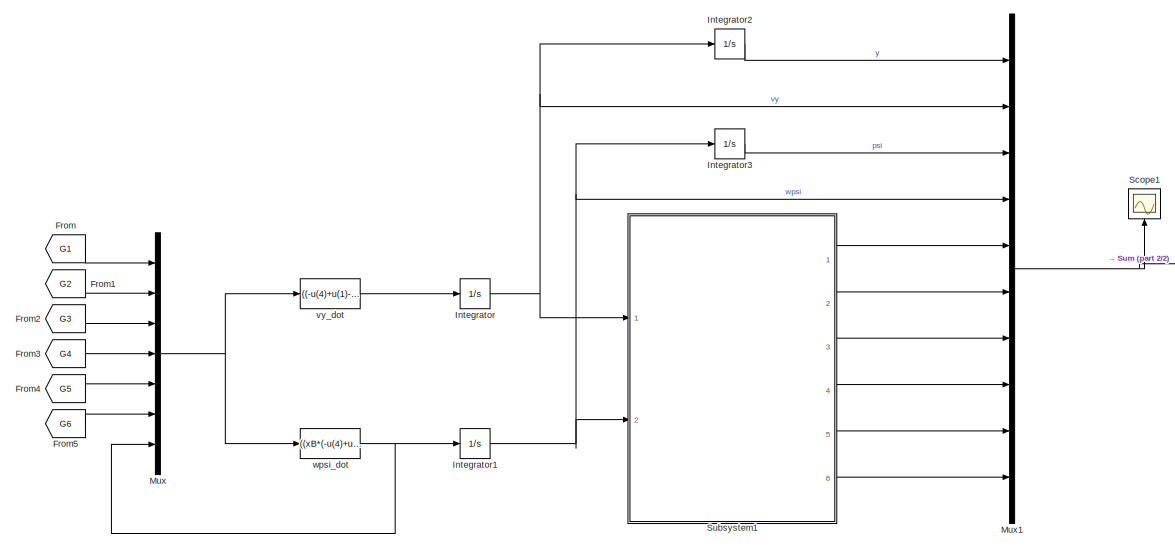
[diagram: root canvas - part 1/2, most of the canvas]
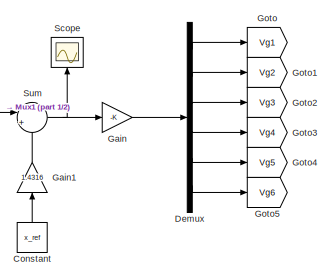
[diagram: root canvas - part 2/2, middle right region]
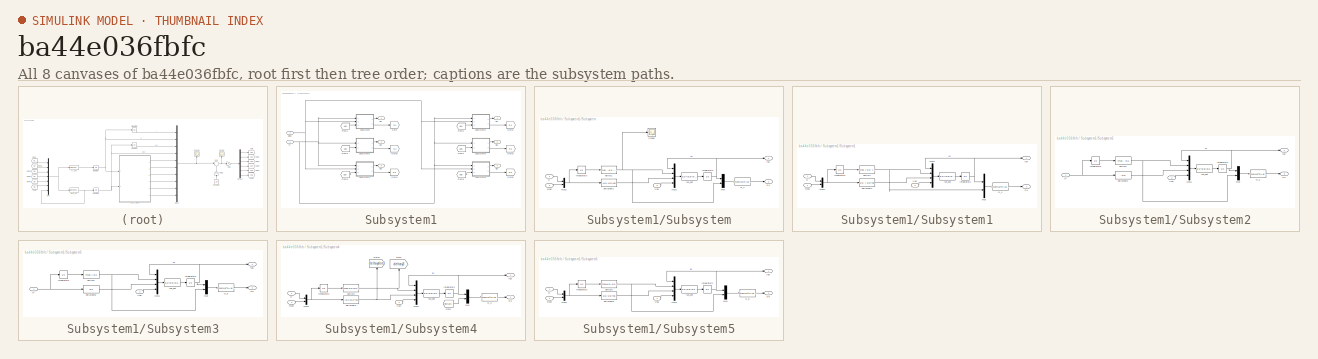
[diagram: thumbnail index - all 8 canvases of the model, root first then tree order]
MODEL slx_ba44e036fbfc
KIND model
CONFIG AbsTol = auto
CONFIG EnableMultiTasking = off
CONFIG FixedStep = auto
CONFIG MaxStep = auto
CONFIG MinStep = auto
CONFIG RelTol = 1e-3
CONFIG SampleTimeConstraint = Unconstrained
CONFIG Solver = VariableStepAuto
CONFIG SolverName = VariableStepAuto
CONFIG StartTime = 0.0
CONFIG StopTime = 10
BLOCK [Constant] Constant
  NameLocation = right
  Value = x_ref
BLOCK [Demux] Demux
  Outputs = 6
  Ports = [1, 6]
BLOCK [From] From
  GotoTag = G1
  TagVisibility = global
BLOCK [From] From1
  GotoTag = G2
  TagVisibility = global
BLOCK [From] From2
  GotoTag = G3
  TagVisibility = global
BLOCK [From] From3
  GotoTag = G4
  TagVisibility = global
BLOCK [From] From4
  GotoTag = G5
  TagVisibility = global
BLOCK [From] From5
  GotoTag = G6
  TagVisibility = global
BLOCK [Gain] Gain
  Gain = -K
  Multiplication = Matrix(K*u)
BLOCK [Gain] Gain1
  Gain = 1.4316
  NameLocation = right
BLOCK [Goto] Goto
  GotoTag = Vg1
  TagVisibility = global
BLOCK [Goto] Goto1
  GotoTag = Vg2
  TagVisibility = global
BLOCK [Goto] Goto2
  GotoTag = Vg3
  TagVisibility = global
BLOCK [Goto] Goto3
  GotoTag = Vg4
  TagVisibility = global
BLOCK [Goto] Goto4
  GotoTag = Vg5
  TagVisibility = global
BLOCK [Goto] Goto5
  GotoTag = Vg6
  TagVisibility = global
BLOCK [Integrator] Integrator
  InitialCondition = vy_init
  Ports = [1, 1]
BLOCK [Integrator] Integrator1
  InitialCondition = wpsi_init
  Ports = [1, 1]
BLOCK [Integrator] Integrator2
  InitialCondition = y_init
  Ports = [1, 1]
BLOCK [Integrator] Integrator3
  InitialCondition = psi_init
  Ports = [1, 1]
BLOCK [Mux] Mux
  DisplayOption = bar
  Inputs = 7
  Ports = [7, 1]
BLOCK [Mux] Mux1
  DisplayOption = bar
  Inputs = 10
  Ports = [10, 1]
BLOCK [Scope] Scope
  Floating = off
  NameLocation = right
  NumInputPorts = 1
  Ports = [1]
  ScopeSpecificationString = Simulink.scopes.TimeScopeBlockCfg('CurrentConfiguration', extmgr.ConfigurationSet(extmgr.Configuration('Core','General UI',true),extmgr.Configuration('Core','Source UI',true),extmgr.Configuration('Sources','WiredSimulink',true),extmgr.Configuration('Visuals','Time Domain',true,'SerializedDisplays',{struct('MinYLimReal','-479.41732','MaxYLimReal','292.02544','YLabelReal','','MinYLimMag',' 0.00000',...<+1442ch>
BLOCK [Scope] Scope1
  Floating = off
  NameLocation = right
  NumInputPorts = 1
  Ports = [1]
  ScopeSpecificationString = Simulink.scopes.TimeScopeBlockCfg('CurrentConfiguration', extmgr.ConfigurationSet(extmgr.Configuration('Core','General UI',true),extmgr.Configuration('Core','Source UI',true),extmgr.Configuration('Sources','WiredSimulink',true,'DataLoggingVariableName','ScopeData1'),extmgr.Configuration('Visuals','Time Domain',true,'SerializedDisplays',{struct('MinYLimReal','-0.07948','MaxYLimReal','0.05419','YLab...<+1835ch>
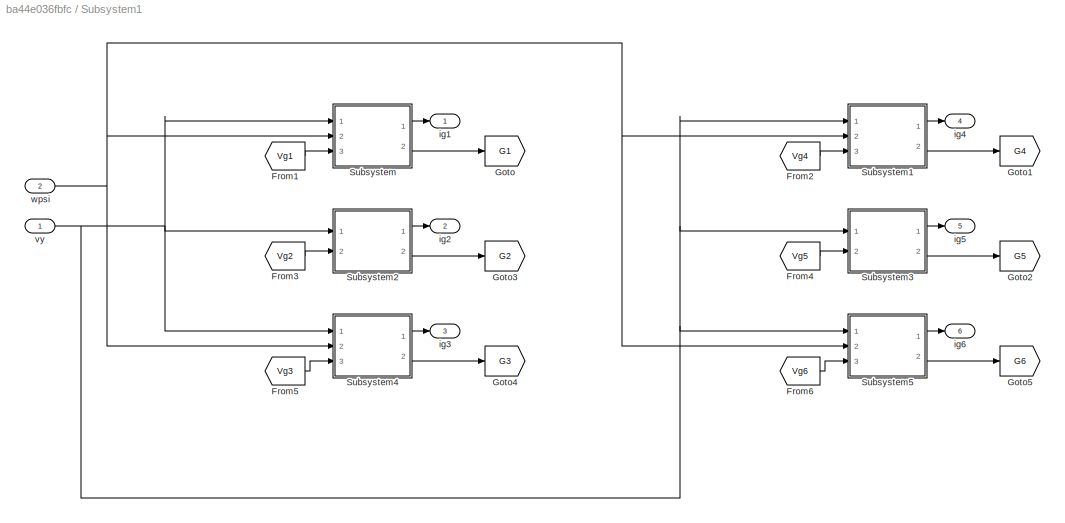
BLOCK [SubSystem] Subsystem1
  Ports = [2, 6]
  RequestExecContextInheritance = off
BLOCK [From] Subsystem1/From1
  GotoTag = Vg1
  TagVisibility = global
BLOCK [From] Subsystem1/From2
  GotoTag = Vg4
  TagVisibility = global
BLOCK [From] Subsystem1/From3
  GotoTag = Vg2
  TagVisibility = global
BLOCK [From] Subsystem1/From4
  GotoTag = Vg5
  TagVisibility = global
BLOCK [From] Subsystem1/From5
  GotoTag = Vg3
  TagVisibility = global
BLOCK [From] Subsystem1/From6
  GotoTag = Vg6
  TagVisibility = global
BLOCK [Goto] Subsystem1/Goto
  GotoTag = G1
  TagVisibility = global
BLOCK [Goto] Subsystem1/Goto1
  GotoTag = G4
  TagVisibility = global
BLOCK [Goto] Subsystem1/Goto2
  GotoTag = G5
  TagVisibility = global
BLOCK [Goto] Subsystem1/Goto3
  GotoTag = G2
  TagVisibility = global
BLOCK [Goto] Subsystem1/Goto4
  GotoTag = G3
  TagVisibility = global
BLOCK [Goto] Subsystem1/Goto5
  GotoTag = G6
  TagVisibility = global
BLOCK [SubSystem] Subsystem1/Subsystem
  Ports = [3, 2]
  RequestExecContextInheritance = off
BLOCK [Outport] Subsystem1/Subsystem/G1
  Port = 2
BLOCK [Fcn] Subsystem1/Subsystem/G_1
  Expr = (mu0*Ng^2*Ag/4)*(u(1)/u(2))^2
BLOCK [Integrator] Subsystem1/Subsystem/Integrator2
  InitialCondition = ig1_init
  Ports = [1, 1]
BLOCK [Integrator] Subsystem1/Subsystem/Integrator3
  InitialCondition = [y_init; psi_init]
  Ports = [1, 1]
BLOCK [Mux] Subsystem1/Subsystem/Mux
  DisplayOption = bar
  Inputs = 2
  Ports = [2, 1]
BLOCK [Mux] Subsystem1/Subsystem/Mux1
  DisplayOption = bar
  Ports = [4, 1]
BLOCK [Mux] Subsystem1/Subsystem/Mux2
  DisplayOption = bar
  Inputs = 2
  Ports = [2, 1]
BLOCK [Scope] Subsystem1/Subsystem/Scope
  Floating = off
  NumInputPorts = 1
  Ports = [1]
  ScopeSpecificationString = Simulink.scopes.TimeScopeBlockCfg('CurrentConfiguration', extmgr.ConfigurationSet(extmgr.Configuration('Core','General UI',true),extmgr.Configuration('Core','Source UI',true),extmgr.Configuration('Sources','WiredSimulink',true,'DataLoggingVariableName','ScopeData1'),extmgr.Configuration('Visuals','Time Domain',true,'SerializedDisplays',{struct('MinYLimReal','0.0188','MaxYLimReal','0.0208','YLabelR...<+1458ch>
BLOCK [Inport] Subsystem1/Subsystem/Vg1
  Port = 3
BLOCK [Fcn] Subsystem1/Subsystem/deltay1
  Expr = ymax - u(1) - u(2)*xB
BLOCK [Fcn] Subsystem1/Subsystem/deltaydot1
  Expr = -u(1)-u(2)*xB
BLOCK [Outport] Subsystem1/Subsystem/ig1
BLOCK [Fcn] Subsystem1/Subsystem/ig1_dot
  Expr = u(1)*(u(3)/u(2))-(2/(mu0*(Ng^2)*Ag))*u(2)*(R*u(1)-u(4));
BLOCK [Inport] Subsystem1/Subsystem/vy
BLOCK [Inport] Subsystem1/Subsystem/wpsi
  Port = 2
BLOCK [SubSystem] Subsystem1/Subsystem1
  Ports = [3, 2]
  RequestExecContextInheritance = off
BLOCK [Outport] Subsystem1/Subsystem1/G4
  Port = 2
BLOCK [Fcn] Subsystem1/Subsystem1/G_4
  Expr = (mu0*Ng^2*Ag/4)*(u(1)/u(2))^2
BLOCK [Integrator] Subsystem1/Subsystem1/Integrator2
  InitialCondition = ig1_init
  Ports = [1, 1]
BLOCK [Integrator] Subsystem1/Subsystem1/Integrator3
  InitialCondition = [y_init; psi_init]
  Ports = [1, 1]
BLOCK [Mux] Subsystem1/Subsystem1/Mux
  DisplayOption = bar
  Inputs = 2
  Ports = [2, 1]
BLOCK [Mux] Subsystem1/Subsystem1/Mux1
  DisplayOption = bar
  Ports = [4, 1]
BLOCK [Mux] Subsystem1/Subsystem1/Mux2
  DisplayOption = bar
  Inputs = 2
  Ports = [2, 1]
BLOCK [Inport] Subsystem1/Subsystem1/Vg4
  Port = 3
BLOCK [Fcn] Subsystem1/Subsystem1/deltay4
  Expr = ymax + u(1) + u(2)*xB
BLOCK [Fcn] Subsystem1/Subsystem1/deltaydot4
  Expr = u(1) + u(2)*xB
BLOCK [Outport] Subsystem1/Subsystem1/ig4
BLOCK [Fcn] Subsystem1/Subsystem1/ig4_dot
  Expr = u(1)*(u(3)/u(2))-(2/(mu0*(Ng^2)*Ag))*u(2)*(R*u(1)-u(4));
BLOCK [Inport] Subsystem1/Subsystem1/vy
BLOCK [Inport] Subsystem1/Subsystem1/wpsi
  Port = 2
BLOCK [SubSystem] Subsystem1/Subsystem2
  Ports = [2, 2]
  RequestExecContextInheritance = off
BLOCK [Outport] Subsystem1/Subsystem2/G2
  Port = 2
BLOCK [Fcn] Subsystem1/Subsystem2/G_2
  Expr = (mu0*Ng^2*Ag/4)*(u(1)/u(2))^2
BLOCK [Integrator] Subsystem1/Subsystem2/Integrator2
  InitialCondition = ig4_init
  Ports = [1, 1]
BLOCK [Integrator] Subsystem1/Subsystem2/Integrator3
  InitialCondition = y_init
  Ports = [1, 1]
BLOCK [Mux] Subsystem1/Subsystem2/Mux
  DisplayOption = bar
  Inputs = 2
  Ports = [2, 1]
BLOCK [Mux] Subsystem1/Subsystem2/Mux1
  DisplayOption = bar
  Ports = [4, 1]
BLOCK [Inport] Subsystem1/Subsystem2/Vg2
  Port = 2
BLOCK [Fcn] Subsystem1/Subsystem2/deltay2
  Expr = ymax - u(1)
BLOCK [Fcn] Subsystem1/Subsystem2/deltaydot2
  Expr = -u(1)
BLOCK [Outport] Subsystem1/Subsystem2/ig2
BLOCK [Fcn] Subsystem1/Subsystem2/ig2_dot
  Expr = u(1)*u(3)/u(2)-(2/(mu0*(Ng^2)*Ag))*u(2)*(R*u(1)-u(4));
BLOCK [Inport] Subsystem1/Subsystem2/vy
BLOCK [SubSystem] Subsystem1/Subsystem3
  Ports = [2, 2]
  RequestExecContextInheritance = off
BLOCK [Outport] Subsystem1/Subsystem3/G5
  Port = 2
BLOCK [Fcn] Subsystem1/Subsystem3/G_5
  Expr = (mu0*Ng^2*Ag/4)*(u(1)/u(2))^2
BLOCK [Integrator] Subsystem1/Subsystem3/Integrator2
  InitialCondition = ig4_init
  Ports = [1, 1]
BLOCK [Integrator] Subsystem1/Subsystem3/Integrator3
  InitialCondition = y_init
  Ports = [1, 1]
BLOCK [Mux] Subsystem1/Subsystem3/Mux
  DisplayOption = bar
  Inputs = 2
  Ports = [2, 1]
BLOCK [Mux] Subsystem1/Subsystem3/Mux1
  DisplayOption = bar
  Ports = [4, 1]
BLOCK [Inport] Subsystem1/Subsystem3/Vg5
  Port = 2
BLOCK [Fcn] Subsystem1/Subsystem3/deltay5
  Expr = ymax + u(1)
BLOCK [Fcn] Subsystem1/Subsystem3/deltaydot5
  Expr = u(1)
BLOCK [Outport] Subsystem1/Subsystem3/ig5
BLOCK [Fcn] Subsystem1/Subsystem3/ig5_dot
  Expr = u(1)*u(3)/u(2)-(2/(mu0*(Ng^2)*Ag))*u(2)*(R*u(1)-u(4));
BLOCK [Inport] Subsystem1/Subsystem3/vy
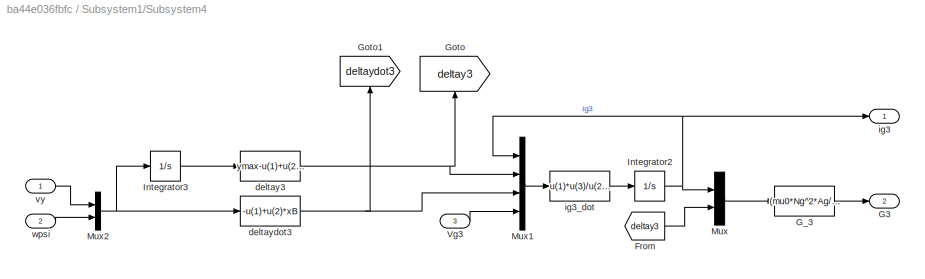
BLOCK [SubSystem] Subsystem1/Subsystem4
  Ports = [3, 2]
  RequestExecContextInheritance = off
BLOCK [From] Subsystem1/Subsystem4/From
  GotoTag = deltay3
  TagVisibility = global
BLOCK [Outport] Subsystem1/Subsystem4/G3
  Port = 2
BLOCK [Fcn] Subsystem1/Subsystem4/G_3
  Expr = (mu0*Ng^2*Ag/4)*(u(1)/u(2))^2
BLOCK [Goto] Subsystem1/Subsystem4/Goto
  GotoTag = deltay3
  NameLocation = right
  TagVisibility = global
BLOCK [Goto] Subsystem1/Subsystem4/Goto1
  GotoTag = deltaydot3
  NameLocation = right
  TagVisibility = global
BLOCK [Integrator] Subsystem1/Subsystem4/Integrator2
  InitialCondition = ig3_init
  Ports = [1, 1]
BLOCK [Integrator] Subsystem1/Subsystem4/Integrator3
  InitialCondition = [y_init; psi_init]
  Ports = [1, 1]
BLOCK [Mux] Subsystem1/Subsystem4/Mux
  DisplayOption = bar
  Inputs = 2
  Ports = [2, 1]
BLOCK [Mux] Subsystem1/Subsystem4/Mux1
  DisplayOption = bar
  Ports = [4, 1]
BLOCK [Mux] Subsystem1/Subsystem4/Mux2
  DisplayOption = bar
  Inputs = 2
  Ports = [2, 1]
BLOCK [Inport] Subsystem1/Subsystem4/Vg3
  Port = 3
BLOCK [Fcn] Subsystem1/Subsystem4/deltay3
  Expr = ymax-u(1)+u(2)*xB
BLOCK [Fcn] Subsystem1/Subsystem4/deltaydot3
  Expr = -u(1)+u(2)*xB
BLOCK [Outport] Subsystem1/Subsystem4/ig3
BLOCK [Fcn] Subsystem1/Subsystem4/ig3_dot
  Expr = u(1)*u(3)/u(2)-(2/(mu0*(Ng^2)*Ag))*u(2)*(R*u(1)-u(4));
BLOCK [Inport] Subsystem1/Subsystem4/vy
BLOCK [Inport] Subsystem1/Subsystem4/wpsi
  Port = 2
BLOCK [SubSystem] Subsystem1/Subsystem5
  Ports = [3, 2]
  RequestExecContextInheritance = off
BLOCK [Outport] Subsystem1/Subsystem5/G6
  Port = 2
BLOCK [Fcn] Subsystem1/Subsystem5/G_6
  Expr = (mu0*Ng^2*Ag/4)*(u(1)/u(2))^2
BLOCK [Integrator] Subsystem1/Subsystem5/Integrator2
  InitialCondition = ig3_init
  Ports = [1, 1]
BLOCK [Integrator] Subsystem1/Subsystem5/Integrator3
  InitialCondition = [y_init; psi_init]
  Ports = [1, 1]
BLOCK [Mux] Subsystem1/Subsystem5/Mux
  DisplayOption = bar
  Inputs = 2
  Ports = [2, 1]
BLOCK [Mux] Subsystem1/Subsystem5/Mux1
  DisplayOption = bar
  Ports = [4, 1]
BLOCK [Mux] Subsystem1/Subsystem5/Mux2
  DisplayOption = bar
  Inputs = 2
  Ports = [2, 1]
BLOCK [Inport] Subsystem1/Subsystem5/Vg6
  Port = 3
BLOCK [Fcn] Subsystem1/Subsystem5/deltay6
  Expr = ymax+u(1)-u(2)*xB
BLOCK [Fcn] Subsystem1/Subsystem5/deltaydot6
  Expr = u(1)-u(2)*xB
BLOCK [Fcn] Subsystem1/Subsystem5/ig3_dot
  Expr = u(1)*u(3)/u(2)-(2/(mu0*(Ng^2)*Ag))*u(2)*(R*u(1)-u(4));
BLOCK [Outport] Subsystem1/Subsystem5/ig6
BLOCK [Inport] Subsystem1/Subsystem5/vy
BLOCK [Inport] Subsystem1/Subsystem5/wpsi
  Port = 2
BLOCK [Outport] Subsystem1/ig1
BLOCK [Outport] Subsystem1/ig2
  Port = 2
BLOCK [Outport] Subsystem1/ig3
  Port = 3
BLOCK [Outport] Subsystem1/ig4
  Port = 4
BLOCK [Outport] Subsystem1/ig5
  Port = 5
BLOCK [Outport] Subsystem1/ig6
  Port = 6
BLOCK [Inport] Subsystem1/vy
BLOCK [Inport] Subsystem1/wpsi
  Port = 2
BLOCK [Sum] Sum
  Inputs = |+-
  Ports = [2, 1]
BLOCK [Fcn] vy_dot
  Expr = ((-u(4)+u(1)-u(5)+u(2)-u(6)+u(3)+m*g*sin(phi)-m*Ra*(wpsi^2)*cos(phi))/m) - vx*u(7)
BLOCK [Fcn] wpsi_dot
  Expr = ((xB*(-u(4)+u(1)+u(6)-u(3))+yB*(-P1+P2-P3+P4-P5+P6))/Jz)
LINE Constant:1 -> Gain1:1
LINE Demux:1 -> Goto:1
LINE Demux:2 -> Goto1:1
LINE Demux:3 -> Goto2:1
LINE Demux:4 -> Goto3:1
LINE Demux:5 -> Goto4:1
LINE Demux:6 -> Goto5:1
LINE From1:1 -> Mux:2
LINE From2:1 -> Mux:3
LINE From3:1 -> Mux:4
LINE From4:1 -> Mux:5
LINE From5:1 -> Mux:6
LINE From:1 -> Mux:1
LINE Gain1:1 -> Sum:2
LINE Gain:1 -> Demux:1
NET Integrator1:1 -> Integrator3:1, Mux1:4, Subsystem1:2
LINE Integrator2:1 -> Mux1:1
LINE Integrator3:1 -> Mux1:3
NET Integrator:1 -> Integrator2:1, Mux1:2, Subsystem1:1
NET Mux1:1 -> Scope1:1, Sum:1
NET Mux:1 -> vy_dot:1, wpsi_dot:1
LINE Subsystem1/From1:1 -> Subsystem1/Subsystem:3
LINE Subsystem1/From2:1 -> Subsystem1/Subsystem1:3
LINE Subsystem1/From3:1 -> Subsystem1/Subsystem2:2
LINE Subsystem1/From4:1 -> Subsystem1/Subsystem3:2
LINE Subsystem1/From5:1 -> Subsystem1/Subsystem4:3
LINE Subsystem1/From6:1 -> Subsystem1/Subsystem5:3
LINE Subsystem1/Subsystem/G_1:1 -> Subsystem1/Subsystem/G1:1
NET Subsystem1/Subsystem/Integrator2:1 -> Subsystem1/Subsystem/Mux1:1, Subsystem1/Subsystem/Mux:1, Subsystem1/Subsystem/ig1:1
LINE Subsystem1/Subsystem/Integrator3:1 -> Subsystem1/Subsystem/deltay1:1
LINE Subsystem1/Subsystem/Mux1:1 -> Subsystem1/Subsystem/ig1_dot:1
NET Subsystem1/Subsystem/Mux2:1 -> Subsystem1/Subsystem/Integrator3:1, Subsystem1/Subsystem/deltaydot1:1
LINE Subsystem1/Subsystem/Mux:1 -> Subsystem1/Subsystem/G_1:1
LINE Subsystem1/Subsystem/Vg1:1 -> Subsystem1/Subsystem/Mux1:4
NET Subsystem1/Subsystem/deltay1:1 -> Subsystem1/Subsystem/Mux1:2, Subsystem1/Subsystem/Mux:2, Subsystem1/Subsystem/Scope:1
LINE Subsystem1/Subsystem/deltaydot1:1 -> Subsystem1/Subsystem/Mux1:3
LINE Subsystem1/Subsystem/ig1_dot:1 -> Subsystem1/Subsystem/Integrator2:1
LINE Subsystem1/Subsystem/vy:1 -> Subsystem1/Subsystem/Mux2:1
LINE Subsystem1/Subsystem/wpsi:1 -> Subsystem1/Subsystem/Mux2:2
LINE Subsystem1/Subsystem1/G_4:1 -> Subsystem1/Subsystem1/G4:1
NET Subsystem1/Subsystem1/Integrator2:1 -> Subsystem1/Subsystem1/Mux1:1, Subsystem1/Subsystem1/Mux:1, Subsystem1/Subsystem1/ig4:1
LINE Subsystem1/Subsystem1/Integrator3:1 -> Subsystem1/Subsystem1/deltay4:1
LINE Subsystem1/Subsystem1/Mux1:1 -> Subsystem1/Subsystem1/ig4_dot:1
NET Subsystem1/Subsystem1/Mux2:1 -> Subsystem1/Subsystem1/Integrator3:1, Subsystem1/Subsystem1/deltaydot4:1
LINE Subsystem1/Subsystem1/Mux:1 -> Subsystem1/Subsystem1/G_4:1
LINE Subsystem1/Subsystem1/Vg4:1 -> Subsystem1/Subsystem1/Mux1:4
NET Subsystem1/Subsystem1/deltay4:1 -> Subsystem1/Subsystem1/Mux1:2, Subsystem1/Subsystem1/Mux:2
LINE Subsystem1/Subsystem1/deltaydot4:1 -> Subsystem1/Subsystem1/Mux1:3
LINE Subsystem1/Subsystem1/ig4_dot:1 -> Subsystem1/Subsystem1/Integrator2:1
LINE Subsystem1/Subsystem1/vy:1 -> Subsystem1/Subsystem1/Mux2:1
LINE Subsystem1/Subsystem1/wpsi:1 -> Subsystem1/Subsystem1/Mux2:2
LINE Subsystem1/Subsystem1:1 -> Subsystem1/ig4:1
LINE Subsystem1/Subsystem1:2 -> Subsystem1/Goto1:1
LINE Subsystem1/Subsystem2/G_2:1 -> Subsystem1/Subsystem2/G2:1
NET Subsystem1/Subsystem2/Integrator2:1 -> Subsystem1/Subsystem2/Mux1:1, Subsystem1/Subsystem2/Mux:1, Subsystem1/Subsystem2/ig2:1
LINE Subsystem1/Subsystem2/Integrator3:1 -> Subsystem1/Subsystem2/deltay2:1
LINE Subsystem1/Subsystem2/Mux1:1 -> Subsystem1/Subsystem2/ig2_dot:1
LINE Subsystem1/Subsystem2/Mux:1 -> Subsystem1/Subsystem2/G_2:1
LINE Subsystem1/Subsystem2/Vg2:1 -> Subsystem1/Subsystem2/Mux1:4
NET Subsystem1/Subsystem2/deltay2:1 -> Subsystem1/Subsystem2/Mux1:2, Subsystem1/Subsystem2/Mux:2
LINE Subsystem1/Subsystem2/deltaydot2:1 -> Subsystem1/Subsystem2/Mux1:3
LINE Subsystem1/Subsystem2/ig2_dot:1 -> Subsystem1/Subsystem2/Integrator2:1
NET Subsystem1/Subsystem2/vy:1 -> Subsystem1/Subsystem2/Integrator3:1, Subsystem1/Subsystem2/deltaydot2:1
LINE Subsystem1/Subsystem2:1 -> Subsystem1/ig2:1
LINE Subsystem1/Subsystem2:2 -> Subsystem1/Goto3:1
LINE Subsystem1/Subsystem3/G_5:1 -> Subsystem1/Subsystem3/G5:1
NET Subsystem1/Subsystem3/Integrator2:1 -> Subsystem1/Subsystem3/Mux1:1, Subsystem1/Subsystem3/Mux:1, Subsystem1/Subsystem3/ig5:1
LINE Subsystem1/Subsystem3/Integrator3:1 -> Subsystem1/Subsystem3/deltay5:1
LINE Subsystem1/Subsystem3/Mux1:1 -> Subsystem1/Subsystem3/ig5_dot:1
LINE Subsystem1/Subsystem3/Mux:1 -> Subsystem1/Subsystem3/G_5:1
LINE Subsystem1/Subsystem3/Vg5:1 -> Subsystem1/Subsystem3/Mux1:4
NET Subsystem1/Subsystem3/deltay5:1 -> Subsystem1/Subsystem3/Mux1:2, Subsystem1/Subsystem3/Mux:2
LINE Subsystem1/Subsystem3/deltaydot5:1 -> Subsystem1/Subsystem3/Mux1:3
LINE Subsystem1/Subsystem3/ig5_dot:1 -> Subsystem1/Subsystem3/Integrator2:1
NET Subsystem1/Subsystem3/vy:1 -> Subsystem1/Subsystem3/Integrator3:1, Subsystem1/Subsystem3/deltaydot5:1
LINE Subsystem1/Subsystem3:1 -> Subsystem1/ig5:1
LINE Subsystem1/Subsystem3:2 -> Subsystem1/Goto2:1
LINE Subsystem1/Subsystem4/From:1 -> Subsystem1/Subsystem4/Mux:2
LINE Subsystem1/Subsystem4/G_3:1 -> Subsystem1/Subsystem4/G3:1
NET Subsystem1/Subsystem4/Integrator2:1 -> Subsystem1/Subsystem4/Mux1:1, Subsystem1/Subsystem4/Mux:1, Subsystem1/Subsystem4/ig3:1
LINE Subsystem1/Subsystem4/Integrator3:1 -> Subsystem1/Subsystem4/deltay3:1
LINE Subsystem1/Subsystem4/Mux1:1 -> Subsystem1/Subsystem4/ig3_dot:1
NET Subsystem1/Subsystem4/Mux2:1 -> Subsystem1/Subsystem4/Integrator3:1, Subsystem1/Subsystem4/deltaydot3:1
LINE Subsystem1/Subsystem4/Mux:1 -> Subsystem1/Subsystem4/G_3:1
LINE Subsystem1/Subsystem4/Vg3:1 -> Subsystem1/Subsystem4/Mux1:4
NET Subsystem1/Subsystem4/deltay3:1 -> Subsystem1/Subsystem4/Goto:1, Subsystem1/Subsystem4/Mux1:2
NET Subsystem1/Subsystem4/deltaydot3:1 -> Subsystem1/Subsystem4/Goto1:1, Subsystem1/Subsystem4/Mux1:3
LINE Subsystem1/Subsystem4/ig3_dot:1 -> Subsystem1/Subsystem4/Integrator2:1
LINE Subsystem1/Subsystem4/vy:1 -> Subsystem1/Subsystem4/Mux2:1
LINE Subsystem1/Subsystem4/wpsi:1 -> Subsystem1/Subsystem4/Mux2:2
LINE Subsystem1/Subsystem4:1 -> Subsystem1/ig3:1
LINE Subsystem1/Subsystem4:2 -> Subsystem1/Goto4:1
LINE Subsystem1/Subsystem5/G_6:1 -> Subsystem1/Subsystem5/G6:1
NET Subsystem1/Subsystem5/Integrator2:1 -> Subsystem1/Subsystem5/Mux1:1, Subsystem1/Subsystem5/Mux:1, Subsystem1/Subsystem5/ig6:1
LINE Subsystem1/Subsystem5/Integrator3:1 -> Subsystem1/Subsystem5/deltay6:1
LINE Subsystem1/Subsystem5/Mux1:1 -> Subsystem1/Subsystem5/ig3_dot:1
NET Subsystem1/Subsystem5/Mux2:1 -> Subsystem1/Subsystem5/Integrator3:1, Subsystem1/Subsystem5/deltaydot6:1
LINE Subsystem1/Subsystem5/Mux:1 -> Subsystem1/Subsystem5/G_6:1
LINE Subsystem1/Subsystem5/Vg6:1 -> Subsystem1/Subsystem5/Mux1:4
NET Subsystem1/Subsystem5/deltay6:1 -> Subsystem1/Subsystem5/Mux1:2, Subsystem1/Subsystem5/Mux:2
LINE Subsystem1/Subsystem5/deltaydot6:1 -> Subsystem1/Subsystem5/Mux1:3
LINE Subsystem1/Subsystem5/ig3_dot:1 -> Subsystem1/Subsystem5/Integrator2:1
LINE Subsystem1/Subsystem5/vy:1 -> Subsystem1/Subsystem5/Mux2:1
LINE Subsystem1/Subsystem5/wpsi:1 -> Subsystem1/Subsystem5/Mux2:2
LINE Subsystem1/Subsystem5:1 -> Subsystem1/ig6:1
LINE Subsystem1/Subsystem5:2 -> Subsystem1/Goto5:1
LINE Subsystem1/Subsystem:1 -> Subsystem1/ig1:1
LINE Subsystem1/Subsystem:2 -> Subsystem1/Goto:1
NET Subsystem1/vy:1 -> Subsystem1/Subsystem1:1, Subsystem1/Subsystem2:1, Subsystem1/Subsystem3:1, Subsystem1/Subsystem4:1, Subsystem1/Subsystem5:1, Subsystem1/Subsystem:1
NET Subsystem1/wpsi:1 -> Subsystem1/Subsystem1:2, Subsystem1/Subsystem4:2, Subsystem1/Subsystem5:2, Subsystem1/Subsystem:2
LINE Subsystem1:1 -> Mux1:5
LINE Subsystem1:2 -> Mux1:6
LINE Subsystem1:3 -> Mux1:7
LINE Subsystem1:4 -> Mux1:8
LINE Subsystem1:5 -> Mux1:9
LINE Subsystem1:6 -> Mux1:10
NET Sum:1 -> Gain:1, Scope:1
LINE vy_dot:1 -> Integrator:1
NET wpsi_dot:1 -> Integrator1:1, Mux:7
note: NET lines group one-source signal fan-out (src -> all destinations, sorted); 1:1 wires keep LINE
